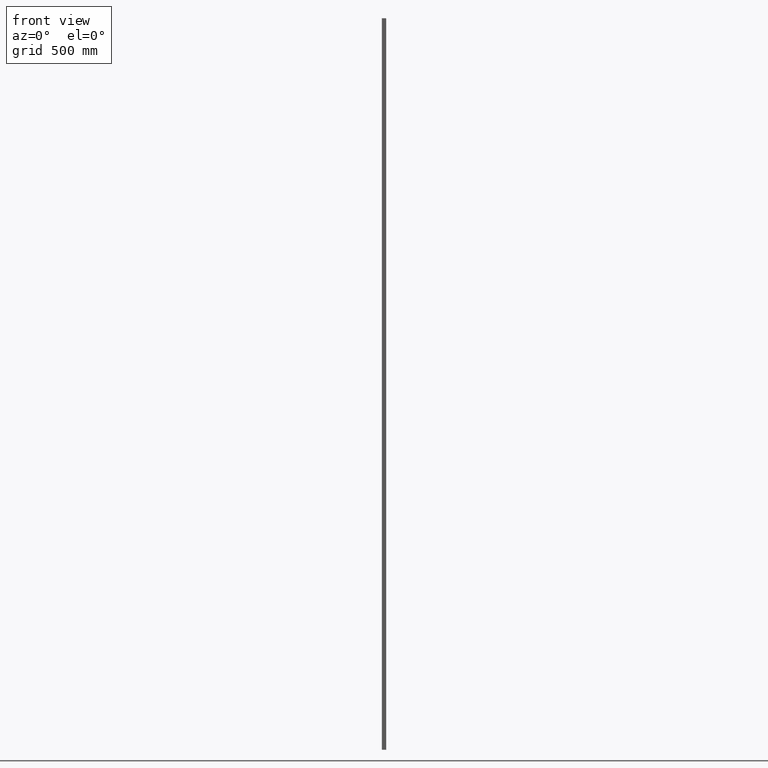
[diagram: clean part render]
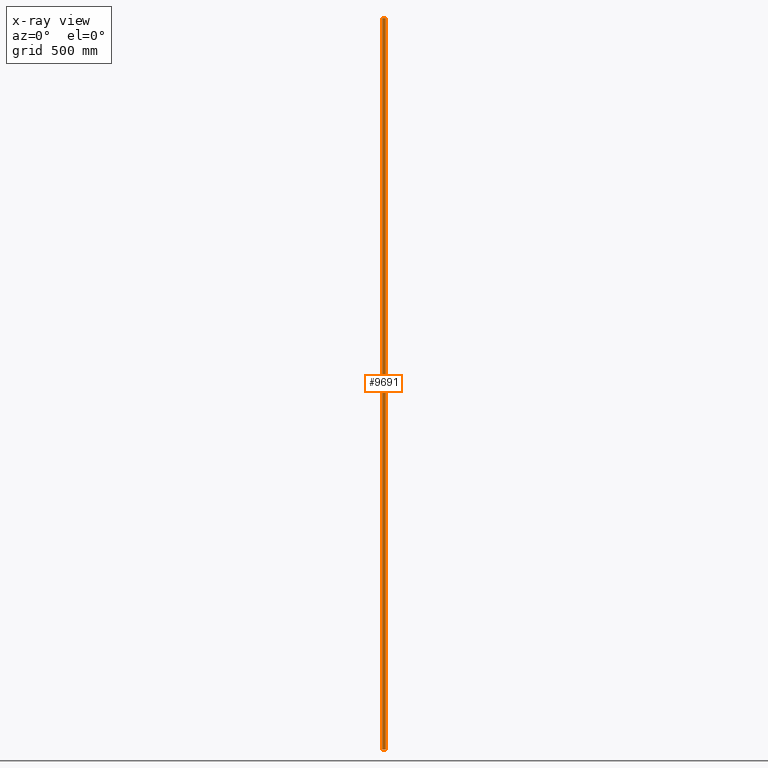
[diagram: x-ray — body ghosted, one internal face saturated and labeled with its STEP entity id]
A machine part, front view, then the same camera in x-ray: the body is ghosted and one INTERNAL B-rep face — a face not visible from any outside direction — is saturated and labeled: STEP entity #9691.
In plain terms, the highlighted planar face has unit normal (0, -1, 0).
Its self-contained STEP definition (entity closure, byte-faithful):
#630 = EDGE_CURVE ( 'NONE', #12262, #14237, #12460, .T. ) ;
#928 = DIRECTION ( 'NONE',  ( -0.000000000000000000, -0.000000000000000000, -1.000000000000000000 ) ) ;
#1376 = EDGE_CURVE ( 'NONE', #12262, #3908, #11315, .T. ) ;
#2290 = DIRECTION ( 'NONE',  ( -1.000000000000000000, -0.000000000000000000, -0.000000000000000000 ) ) ;
#2810 = CARTESIAN_POINT ( 'NONE',  ( 6.550000000000000711, 6.000000000000000000, 1500.000000000000000 ) ) ;
#3394 = ORIENTED_EDGE ( 'NONE', *, *, #630, .F. ) ;
#3511 = VECTOR ( 'NONE', #928, 1000.000000000000000 ) ;
#3689 = CARTESIAN_POINT ( 'NONE',  ( -6.550000000000000711, 6.000000000000000000, 1500.000000000000000 ) ) ;
#3765 = DIRECTION ( 'NONE',  ( 0.000000000000000000, -1.000000000000000000, 0.000000000000000000 ) ) ;
#3908 = VERTEX_POINT ( 'NONE', #14392 ) ;
#3974 = CARTESIAN_POINT ( 'NONE',  ( -6.550000000000000711, 6.000000000000000000, 1500.000000000000000 ) ) ;
#5373 = CARTESIAN_POINT ( 'NONE',  ( -6.550000000000000711, 6.000000000000000000, 1500.000000000000000 ) ) ;
#6307 = FACE_OUTER_BOUND ( 'NONE', #8642, .T. ) ;
#7244 = LINE ( 'NONE', #3689, #3511 ) ;
#7703 = CARTESIAN_POINT ( 'NONE',  ( -6.550000000000000711, 6.000000000000000000, -1500.000000000000000 ) ) ;
#8036 = EDGE_CURVE ( 'NONE', #14237, #18177, #7244, .T. ) ;
#8493 = CARTESIAN_POINT ( 'NONE',  ( -6.550000000000000711, 6.000000000000000000, -1500.000000000000000 ) ) ;
#8642 = EDGE_LOOP ( 'NONE', ( #13512, #9140, #3394, #15395 ) ) ;
#9140 = ORIENTED_EDGE ( 'NONE', *, *, #8036, .F. ) ;
#9396 = PLANE ( 'NONE',  #16791 ) ;
#9691 = ADVANCED_FACE ( 'NONE', ( #6307 ), #9396, .F. ) ;
#10021 = LINE ( 'NONE', #8493, #12909 ) ;
#11315 = LINE ( 'NONE', #2810, #15502 ) ;
#11334 = VECTOR ( 'NONE', #2290, 1000.000000000000000 ) ;
#12172 = EDGE_CURVE ( 'NONE', #3908, #18177, #10021, .T. ) ;
#12262 = VERTEX_POINT ( 'NONE', #17236 ) ;
#12460 = LINE ( 'NONE', #13635, #11334 ) ;
#12715 = DIRECTION ( 'NONE',  ( -0.000000000000000000, -0.000000000000000000, -1.000000000000000000 ) ) ;
#12909 = VECTOR ( 'NONE', #18254, 1000.000000000000000 ) ;
#13512 = ORIENTED_EDGE ( 'NONE', *, *, #12172, .T. ) ;
#13635 = CARTESIAN_POINT ( 'NONE',  ( -6.550000000000000711, 6.000000000000000000, 1500.000000000000000 ) ) ;
#13885 = DIRECTION ( 'NONE',  ( 0.000000000000000000, -0.000000000000000000, -1.000000000000000000 ) ) ;
#14237 = VERTEX_POINT ( 'NONE', #3974 ) ;
#14392 = CARTESIAN_POINT ( 'NONE',  ( 6.550000000000000711, 6.000000000000000000, -1500.000000000000000 ) ) ;
#15395 = ORIENTED_EDGE ( 'NONE', *, *, #1376, .T. ) ;
#15502 = VECTOR ( 'NONE', #12715, 1000.000000000000000 ) ;
#16791 = AXIS2_PLACEMENT_3D ( 'NONE', #5373, #3765, #13885 ) ;
#17236 = CARTESIAN_POINT ( 'NONE',  ( 6.550000000000000711, 6.000000000000000000, 1500.000000000000000 ) ) ;
#18177 = VERTEX_POINT ( 'NONE', #7703 ) ;
#18254 = DIRECTION ( 'NONE',  ( -1.000000000000000000, -0.000000000000000000, -0.000000000000000000 ) ) ;